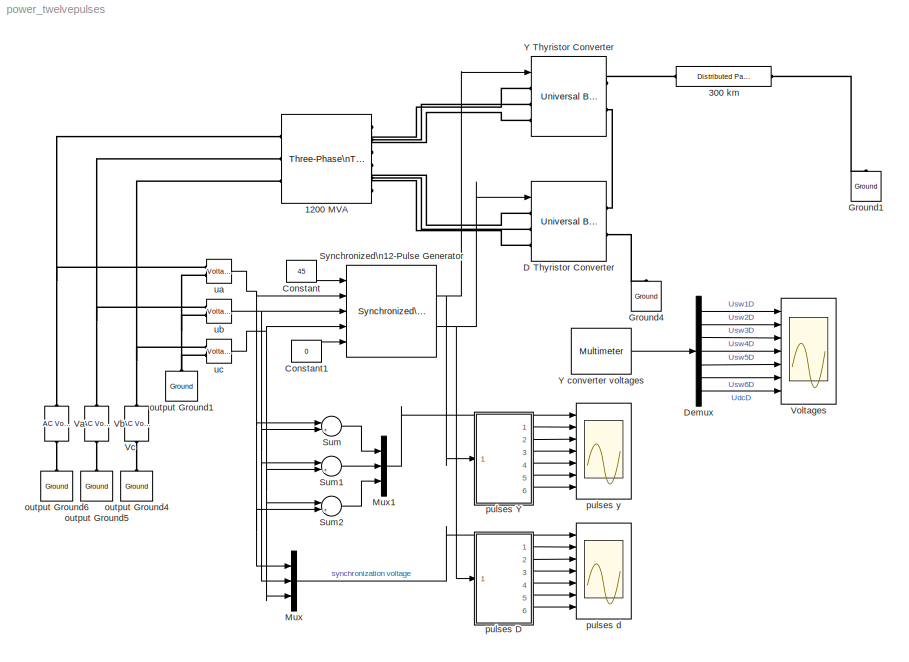
MODEL power_twelvepulses
KIND model
BLOCK [Reference]  Synchronized\n12-Pulse Generator  REF=powerlib_extras/Control \nBlocks/ Synchronized\n12-Pulse Generator
  Double_Pulse = off
  Ports = [5, 2]
  ShowPortLabels = on
  SourceBlock = powerlib_extras/Control \nBlocks/ Synchronized\n12-Pulse Generator
  SourceType = Synchronized 12-pulse generator
  freq = 60
  pwidth = 20
BLOCK [Reference] 1200 MVA  REF=powerlib/Elements/Three-Phase\nTransformer\n(Three Windings)
  AttributesFormatString = \\n
  DataFile = 'basic_model'
  Hysteresis = off
  InitialFluxes = [0.8 -0.8 0.7]
  Lm = 500
  Measurements = None
  NominalPower = [ 1200e6 , 60 ]
  Ports = [0, 0, 0, 0, 0, 3, 6]
  Rm = 500
  Saturation = [0 0; 1 1.2; 2 1.1]
  SetInitialFlux = off
  SetSaturation = off
  ShowPortLabels = on
  SourceBlock = powerlib/Elements/Three-Phase\nTransformer\n(Three Windings)
  SourceType = Three-Phase Transformer (Three Windings)
  TransfoNumber = 0
  Winding1 = [ 500e3 0  0 ]
  Winding1Connection = Yg
  Winding2 = [ 200e3 0 0]
  Winding2Connection = Y
  Winding3 = [ 200e3 0.001 0]
  Winding3Connection = Delta (D1)
BLOCK [Reference] 300 km  REF=powerlib/Elements/Distributed Parameters Line
  AttributesFormatString = \\n
  Capacitance = 14.4e-9
  Frequency = 60
  Inductance = 0.792e-3
  Length = 300
  Measurements = Phase-to-ground voltages
  Phases = 1
  Ports = [0, 0, 0, 0, 0, 1, 1]
  Resistance = 0.015
  ShowPortLabels = on
  SourceBlock = powerlib/Elements/Distributed Parameters Line
  SourceType = Distributed Parameters Line
  x1 = [0 0 0 0; 0.0001244 0 0 0; 0.0002488 0 0 0; 0.0003733 0 0 0; 0.0004977 0 0 0; 0.0006221 0 0 0]
  x2 = [0 0 0 0; 0.0001244 0 0 0; 0.0002488 0 0 0; 0.0003733 0 0 0; 0.0004977 0 0 0; 0.0006221 0 0 0]
  x3 = [0 0 0 0; 0.0001244 0 0 0; 0.0002488 0 0 0; 0.0003733 0 0 0; 0.0004977 0 0 0; 0.0006221 0 0 0]
  x4 = [0 0 0 0; 0.0001244 0 0 0; 0.0002488 0 0 0; 0.0003733 0 0 0; 0.0004977 0 0 0; 0.0006221 0 0 0]
  x5 = 0
BLOCK [Constant] Constant
  Value = 45
BLOCK [Constant] Constant1
  Value = 0
BLOCK [Reference] D Thyristor Converter  REF=powerlib/Power\nElectronics/Universal Bridge
  Arms = 3
  AttributesFormatString = \\n
  Device = Thyristors
  ForwardVoltage = 0
  ForwardVoltages = [  0.8  0.8  ]
  GTOparameters = [ 10e-6 , 20e-6 ]
  IGBTparameters = [ 1e-6 , 2e-6 ]
  Lon = 0
  Measurements = All voltages and currents
  Ports = [1, 0, 0, 0, 0, 3, 2]
  Ron = 1e-3
  ShowPortLabels = on
  SnubberCapacitance = inf
  SnubberResistance = 2000
  SourceBlock = powerlib/Power\nElectronics/Universal Bridge
  SourceType = Universal Bridge
BLOCK [Demux] Demux
  Outputs = 7
  Ports = [1, 7]
BLOCK [Reference] Ground1  REF=powerlib/Elements/Ground
  AttributesFormatString = \\n
  LConnTagsString = a
  LeftPortType = p1
  PhysicalDomain = powersysdomain
  Ports = [0, 0, 0, 0, 0, 1]
  RightPortType = p1
  SourceBlock = powerlib/Elements/Ground
  SourceType = Ground
  SubClassName = unknown
BLOCK [Reference] Ground4  REF=powerlib/Elements/Ground
  AttributesFormatString = \\n
  LConnTagsString = a
  LeftPortType = p1
  PhysicalDomain = powersysdomain
  Ports = [0, 0, 0, 0, 0, 1]
  RightPortType = p1
  SourceBlock = powerlib/Elements/Ground
  SourceType = Ground
  SubClassName = unknown
BLOCK [Mux] Mux
  DisplayOption = bar
  Inputs = 3
  Ports = [3, 1]
BLOCK [Mux] Mux1
  DisplayOption = bar
  Inputs = 3
  Ports = [3, 1]
BLOCK [Sum] Sum
  IconShape = round
  Inputs = |+-
  Ports = [2, 1]
BLOCK [Sum] Sum1
  IconShape = round
  Inputs = |+-
  Ports = [2, 1]
BLOCK [Sum] Sum2
  IconShape = round
  Inputs = |+-
  Ports = [2, 1]
BLOCK [Reference] Va  REF=powerlib/Electrical\nSources/AC Voltage Source
  Amplitude = 500e3/sqrt(3)*sqrt(2)
  AttributesFormatString = \\n
  Description = source block
  Frequency = 60
  Measurements = None
  Phase = 0
  Ports = [0, 0, 0, 0, 0, 1, 1]
  SampleTime = 0
  ShowPortLabels = on
  SourceBlock = powerlib/Electrical\nSources/AC Voltage Source
  SourceType = AC Voltage Source
BLOCK [Reference] Vb  REF=powerlib/Electrical\nSources/AC Voltage Source
  Amplitude = 500e3/sqrt(3)*sqrt(2)
  AttributesFormatString = \\n
  Description = source block
  Frequency = 60
  Measurements = None
  Phase = -120
  Ports = [0, 0, 0, 0, 0, 1, 1]
  SampleTime = 0
  ShowPortLabels = on
  SourceBlock = powerlib/Electrical\nSources/AC Voltage Source
  SourceType = AC Voltage Source
BLOCK [Reference] Vc  REF=powerlib/Electrical\nSources/AC Voltage Source
  Amplitude = 500e3/sqrt(3)*sqrt(2)
  AttributesFormatString = \\n
  Description = source block
  Frequency = 60
  Measurements = None
  Phase = 120
  Ports = [0, 0, 0, 0, 0, 1, 1]
  SampleTime = 0
  ShowPortLabels = on
  SourceBlock = powerlib/Electrical\nSources/AC Voltage Source
  SourceType = AC Voltage Source
BLOCK [Scope] Voltages
  DataFormat = StructureWithTime
  LimitDataPoints = off
  NumInputPorts = 7
  Ports = [7]
  SampleInput = on
  SampleTime = 1/60/512
  SaveName = VI_scope2
  SaveToWorkspace = on
  TimeRange = 0.035
  YMax = 400~1~1~1~1~1~1
  YMin = -400~-1~-1~-1~0~0~0
  ZoomMode = xonly
BLOCK [Reference] Y Thyristor Converter  REF=powerlib/Power\nElectronics/Universal Bridge
  Arms = 3
  AttributesFormatString = \\n
  Device = Thyristors
  ForwardVoltage = 0
  ForwardVoltages = [  0.8  0.8  ]
  GTOparameters = [ 10e-6 , 20e-6 ]
  IGBTparameters = [ 1e-6 , 2e-6 ]
  Lon = 0
  Measurements = All voltages and currents
  Ports = [1, 0, 0, 0, 0, 3, 2]
  Ron = 1e-3
  ShowPortLabels = on
  SnubberCapacitance = .1e-6
  SnubberResistance = 2000
  SourceBlock = powerlib/Power\nElectronics/Universal Bridge
  SourceType = Universal Bridge
BLOCK [Reference] Y converter voltages   REF=powerlib/Measurements/Multimeter
  AttributesFormatString = \\n
  AxesSetting = [0,0.1,-100,100]
  Display = 0
  Gain = [-1 -1 -1 -1 -1 -1 1]
  L = 34
  OutputType = Magnitude
  PSBOutputType = 1
  PSBequivalent = 0
  PhasorSimulation = off
  Ports = [0, 1]
  SavedBlockNames = -11
  ShowPortLabels = on
  SourceBlock = powerlib/Measurements/Multimeter
  SourceType = MultimeterPSB
  Tag = PoWeRsYsTeMmEaSuReMeNt
  sel = [1 2 3 4 5 6 21]
  yselected = {'Usw1: D Thyristor Converter','Usw2: D Thyristor Converter','Usw3: D Thyristor Converter','Usw4: D Thyristor Converter','Usw5: D Thyristor Converter','Usw6: D Thyristor Converter','Us_ph1_gnd: 300 km'};
BLOCK [Reference] output Ground1  REF=powerlib/Elements/Ground
  AttributesFormatString = \\n
  LConnTagsString = a
  LeftPortType = p1
  PhysicalDomain = powersysdomain
  Ports = [0, 0, 0, 0, 0, 1]
  RightPortType = p1
  SourceBlock = powerlib/Elements/Ground
  SourceType = Ground
  SubClassName = unknown
BLOCK [Reference] output Ground4  REF=powerlib/Elements/Ground
  AttributesFormatString = \\n
  LConnTagsString = a
  LeftPortType = p1
  PhysicalDomain = powersysdomain
  Ports = [0, 0, 0, 0, 0, 1]
  RightPortType = p1
  SourceBlock = powerlib/Elements/Ground
  SourceType = Ground
  SubClassName = unknown
BLOCK [Reference] output Ground5  REF=powerlib/Elements/Ground
  AttributesFormatString = \\n
  LConnTagsString = a
  LeftPortType = p1
  PhysicalDomain = powersysdomain
  Ports = [0, 0, 0, 0, 0, 1]
  RightPortType = p1
  SourceBlock = powerlib/Elements/Ground
  SourceType = Ground
  SubClassName = unknown
BLOCK [Reference] output Ground6  REF=powerlib/Elements/Ground
  AttributesFormatString = \\n
  LConnTagsString = a
  LeftPortType = p1
  PhysicalDomain = powersysdomain
  Ports = [0, 0, 0, 0, 0, 1]
  RightPortType = p1
  SourceBlock = powerlib/Elements/Ground
  SourceType = Ground
  SubClassName = unknown
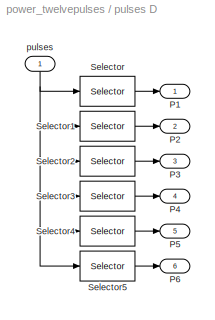
BLOCK [SubSystem] pulses D
  MinAlgLoopOccurrences = off
  Ports = [1, 6]
  RTWSystemCode = Auto
  TreatAsAtomicUnit = off
BLOCK [Outport] pulses D/P1
  IconDisplay = Port number
BLOCK [Outport] pulses D/P2
  IconDisplay = Port number
  Port = 2
BLOCK [Outport] pulses D/P3
  IconDisplay = Port number
  Port = 3
BLOCK [Outport] pulses D/P4
  IconDisplay = Port number
  Port = 4
BLOCK [Outport] pulses D/P5
  IconDisplay = Port number
  Port = 5
BLOCK [Outport] pulses D/P6
  IconDisplay = Port number
  Port = 6
BLOCK [Selector] pulses D/Selector
  InputPortWidth = 6
  Ports = [1, 1]
BLOCK [Selector] pulses D/Selector1
  Elements = 2
  InputPortWidth = 6
  Ports = [1, 1]
BLOCK [Selector] pulses D/Selector2
  Elements = 3
  InputPortWidth = 6
  Ports = [1, 1]
BLOCK [Selector] pulses D/Selector3
  Elements = 4
  InputPortWidth = 6
  Ports = [1, 1]
BLOCK [Selector] pulses D/Selector4
  Elements = 5
  InputPortWidth = 6
  Ports = [1, 1]
BLOCK [Selector] pulses D/Selector5
  Elements = 6
  InputPortWidth = 6
  Ports = [1, 1]
BLOCK [Inport] pulses D/pulses
  IconDisplay = Port number
  LatchInput = off
  Port = 1
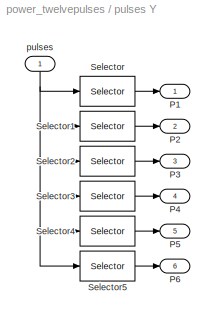
BLOCK [SubSystem] pulses Y
  MinAlgLoopOccurrences = off
  Ports = [1, 6]
  RTWSystemCode = Auto
  TreatAsAtomicUnit = off
BLOCK [Outport] pulses Y/P1
  IconDisplay = Port number
BLOCK [Outport] pulses Y/P2
  IconDisplay = Port number
  Port = 2
BLOCK [Outport] pulses Y/P3
  IconDisplay = Port number
  Port = 3
BLOCK [Outport] pulses Y/P4
  IconDisplay = Port number
  Port = 4
BLOCK [Outport] pulses Y/P5
  IconDisplay = Port number
  Port = 5
BLOCK [Outport] pulses Y/P6
  IconDisplay = Port number
  Port = 6
BLOCK [Selector] pulses Y/Selector
  InputPortWidth = 6
  Ports = [1, 1]
BLOCK [Selector] pulses Y/Selector1
  Elements = 2
  InputPortWidth = 6
  Ports = [1, 1]
BLOCK [Selector] pulses Y/Selector2
  Elements = 3
  InputPortWidth = 6
  Ports = [1, 1]
BLOCK [Selector] pulses Y/Selector3
  Elements = 4
  InputPortWidth = 6
  Ports = [1, 1]
BLOCK [Selector] pulses Y/Selector4
  Elements = 5
  InputPortWidth = 6
  Ports = [1, 1]
BLOCK [Selector] pulses Y/Selector5
  Elements = 6
  InputPortWidth = 6
  Ports = [1, 1]
BLOCK [Inport] pulses Y/pulses
  IconDisplay = Port number
  LatchInput = off
  Port = 1
BLOCK [Scope] pulses d
  DataFormat = StructureWithTime
  LimitDataPoints = off
  NumInputPorts = 7
  Ports = [7]
  SampleInput = on
  SampleTime = 1/60/512
  SaveName = VI_scope1
  SaveToWorkspace = on
  TimeRange = 0.035
  YMax = 500000~1~1~1~1~1~1
  YMin = -500000~0~0~0~0~0~0
  ZoomMode = xonly
BLOCK [Scope] pulses y
  DataFormat = StructureWithTime
  LimitDataPoints = off
  NumInputPorts = 7
  Ports = [7]
  SampleInput = on
  SampleTime = 1/60/512
  SaveName = VI_scope
  SaveToWorkspace = on
  TimeRange = 0.1
  YMax = 500000~1~1~1~1~1~1
  YMin = -500000~0~0~0~0~0~0
  ZoomMode = xonly
BLOCK [Reference] ua  REF=powerlib/Measurements/Voltage Measurement
  AttributesFormatString = \\n
  OutputType = Magnitude
  PSBequivalent = 0
  PhasorSimulation = off
  Ports = [0, 1, 0, 0, 0, 2]
  ShowPortLabels = on
  SourceBlock = powerlib/Measurements/Voltage Measurement
  SourceType = Voltage Measurement
  Tag = PoWeRsYsTeMmEaSuReMeNt
BLOCK [Reference] ub  REF=powerlib/Measurements/Voltage Measurement
  AttributesFormatString = \\n
  OutputType = Magnitude
  PSBequivalent = 0
  PhasorSimulation = off
  Ports = [0, 1, 0, 0, 0, 2]
  ShowPortLabels = on
  SourceBlock = powerlib/Measurements/Voltage Measurement
  SourceType = Voltage Measurement
  Tag = PoWeRsYsTeMmEaSuReMeNt
BLOCK [Reference] uc  REF=powerlib/Measurements/Voltage Measurement
  AttributesFormatString = \\n
  OutputType = Magnitude
  PSBequivalent = 0
  PhasorSimulation = off
  Ports = [0, 1, 0, 0, 0, 2]
  ShowPortLabels = on
  SourceBlock = powerlib/Measurements/Voltage Measurement
  SourceType = Voltage Measurement
  Tag = PoWeRsYsTeMmEaSuReMeNt
NET  Synchronized\n12-Pulse Generator:1 -> Y Thyristor Converter:1, pulses Y:1
NET  Synchronized\n12-Pulse Generator:2 -> D Thyristor Converter:1, pulses D:1
LINE Constant1:1 ->  Synchronized\n12-Pulse Generator:5
LINE Constant:1 ->  Synchronized\n12-Pulse Generator:1
LINE Demux:1 -> Voltages:1
LINE Demux:2 -> Voltages:2
LINE Demux:3 -> Voltages:3
LINE Demux:4 -> Voltages:4
LINE Demux:5 -> Voltages:5
LINE Demux:6 -> Voltages:6
LINE Demux:7 -> Voltages:7
LINE Mux1:1 -> pulses y:1
LINE Mux:1 -> pulses d:1
LINE Sum1:1 -> Mux1:2
LINE Sum2:1 -> Mux1:3
LINE Sum:1 -> Mux1:1
LINE Y converter voltages :1 -> Demux:1
LINE pulses D/Selector1:1 -> pulses D/P2:1
LINE pulses D/Selector2:1 -> pulses D/P3:1
LINE pulses D/Selector3:1 -> pulses D/P4:1
LINE pulses D/Selector4:1 -> pulses D/P5:1
LINE pulses D/Selector5:1 -> pulses D/P6:1
LINE pulses D/Selector:1 -> pulses D/P1:1
NET pulses D/pulses:1 -> pulses D/Selector1:1, pulses D/Selector2:1, pulses D/Selector3:1, pulses D/Selector4:1, pulses D/Selector5:1, pulses D/Selector:1
LINE pulses D:1 -> pulses d:2
LINE pulses D:2 -> pulses d:3
LINE pulses D:3 -> pulses d:4
LINE pulses D:4 -> pulses d:5
LINE pulses D:5 -> pulses d:6
LINE pulses D:6 -> pulses d:7
LINE pulses Y/Selector1:1 -> pulses Y/P2:1
LINE pulses Y/Selector2:1 -> pulses Y/P3:1
LINE pulses Y/Selector3:1 -> pulses Y/P4:1
LINE pulses Y/Selector4:1 -> pulses Y/P5:1
LINE pulses Y/Selector5:1 -> pulses Y/P6:1
LINE pulses Y/Selector:1 -> pulses Y/P1:1
NET pulses Y/pulses:1 -> pulses Y/Selector1:1, pulses Y/Selector2:1, pulses Y/Selector3:1, pulses Y/Selector4:1, pulses Y/Selector5:1, pulses Y/Selector:1
LINE pulses Y:1 -> pulses y:2
LINE pulses Y:2 -> pulses y:3
LINE pulses Y:3 -> pulses y:4
LINE pulses Y:4 -> pulses y:5
LINE pulses Y:5 -> pulses y:6
LINE pulses Y:6 -> pulses y:7
NET ua:1 ->  Synchronized\n12-Pulse Generator:2, Mux:1, Sum2:2, Sum:1
NET ub:1 ->  Synchronized\n12-Pulse Generator:3, Mux:2, Sum1:1, Sum:2
NET uc:1 ->  Synchronized\n12-Pulse Generator:4, Mux:3, Sum1:2, Sum2:1
PNET net1: 1200 MVA:LConn1 -- Va:RConn1 -- ua:LConn1
PNET net2: 1200 MVA:LConn2 -- Vb:RConn1 -- ub:LConn1
PNET net3: 1200 MVA:LConn3 -- Vc:RConn1 -- uc:LConn1
PLINE 1200 MVA:RConn1 -- Y Thyristor Converter:LConn1
PLINE 1200 MVA:RConn2 -- Y Thyristor Converter:LConn2
PLINE 1200 MVA:RConn3 -- Y Thyristor Converter:LConn3
PLINE 1200 MVA:RConn4 -- D Thyristor Converter:LConn1
PLINE 1200 MVA:RConn5 -- D Thyristor Converter:LConn2
PLINE 1200 MVA:RConn6 -- D Thyristor Converter:LConn3
PLINE 300 km:LConn1 -- Y Thyristor Converter:RConn1
PLINE 300 km:RConn1 -- Ground1:LConn1
PLINE D Thyristor Converter:RConn1 -- Y Thyristor Converter:RConn2
PLINE D Thyristor Converter:RConn2 -- Ground4:LConn1
PLINE Va:LConn1 -- output Ground6:LConn1
PLINE Vb:LConn1 -- output Ground5:LConn1
PLINE Vc:LConn1 -- output Ground4:LConn1
PNET net4: output Ground1:LConn1 -- ua:LConn2 -- ub:LConn2 -- uc:LConn2
note: NET lines group one-source signal fan-out (src -> all destinations, sorted); 1:1 wires keep LINE; PNET lines group multi-terminal physical nets as a canonical sorted terminal list (undirected conserving connections); 2-terminal nets keep the pairwise PLINE form
